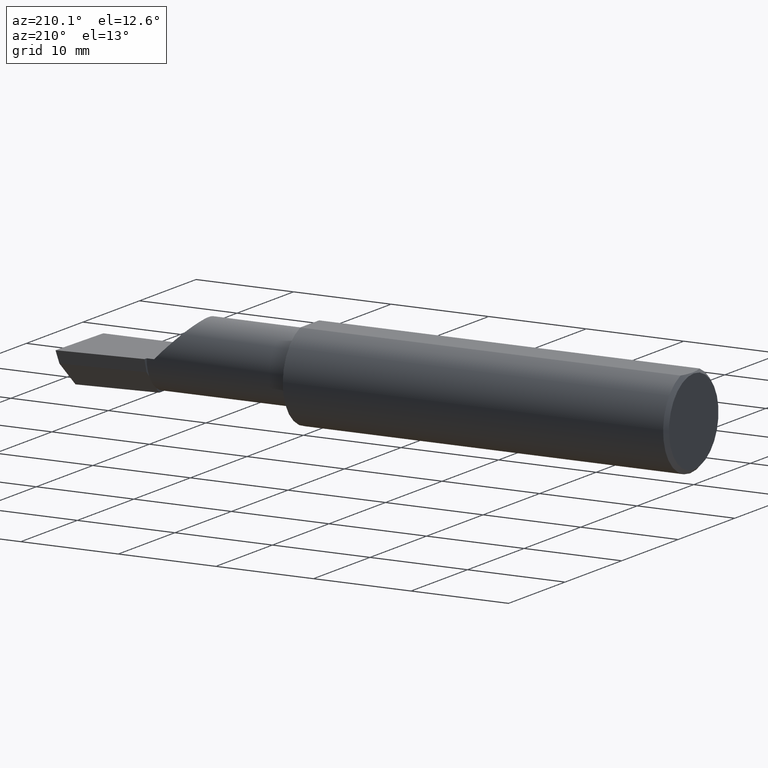
[diagram: clean part render]
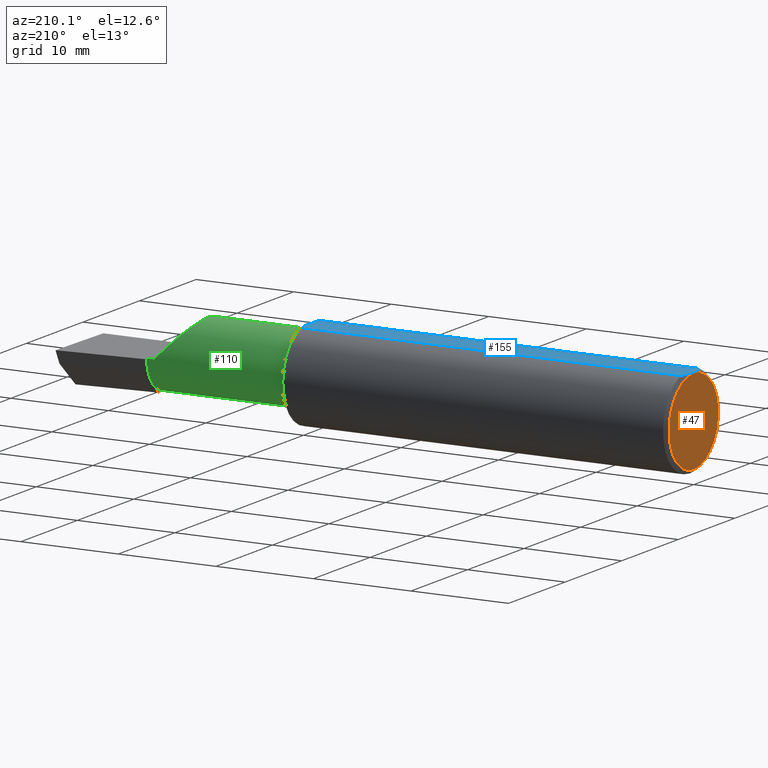
[diagram: same view with three faces highlighted in distinct colors, each labeled with its STEP entity id]
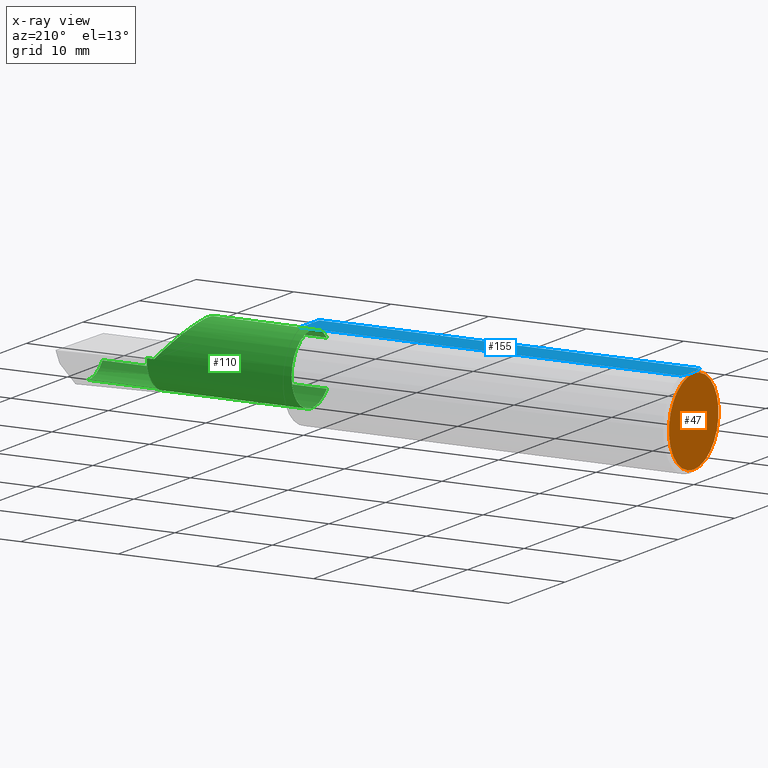
[diagram: x-ray of the same camera — body ghosted, the three highlighted faces saturated]
A machine part, auxiliary view with three faces highlighted in distinct colors.
The next image is the same camera in x-ray (body ghosted, the three faces saturated) — at least one of them is partly hidden behind the body in this view.
Their STEP definitions:

[orange] entity #47 — the highlighted planar face has unit normal (1, 0, 0).
#47 = ADVANCED_FACE ( 'NONE', ( #172 ), #56, .F. ) ;
#53 = EDGE_CURVE ( 'NONE', #376, #537, #286, .T. ) ;
#56 = PLANE ( 'NONE',  #517 ) ;
#113 = CIRCLE ( 'NONE', #435, 0.1723499999999996424 ) ;
#125 = DIRECTION ( 'NONE',  ( 1.000000000000000000, 0.0000000000000000000, 0.0000000000000000000 ) ) ;
#128 = CARTESIAN_POINT ( 'NONE',  ( 0.0000000000000000000, 0.0000000000000000000, 0.0000000000000000000 ) ) ;
#172 = FACE_OUTER_BOUND ( 'NONE', #519, .T. ) ;
#227 = ORIENTED_EDGE ( 'NONE', *, *, #53, .T. ) ;
#235 = ORIENTED_EDGE ( 'NONE', *, *, #321, .T. ) ;
#241 = CARTESIAN_POINT ( 'NONE',  ( 0.0000000000000000000, 0.0000000000000000000, 0.0000000000000000000 ) ) ;
#243 = DIRECTION ( 'NONE',  ( -1.000000000000000000, -0.0000000000000000000, -0.0000000000000000000 ) ) ;
#245 = DIRECTION ( 'NONE',  ( 0.0000000000000000000, 0.0000000000000000000, 1.000000000000000000 ) ) ;
#286 = CIRCLE ( 'NONE', #498, 0.1723499999999996424 ) ;
#321 = EDGE_CURVE ( 'NONE', #537, #376, #113, .T. ) ;
#376 = VERTEX_POINT ( 'NONE', #449 ) ;
#380 = DIRECTION ( 'NONE',  ( 0.0000000000000000000, 0.0000000000000000000, -1.000000000000000000 ) ) ;
#412 = DIRECTION ( 'NONE',  ( 0.0000000000000000000, 0.0000000000000000000, 1.000000000000000000 ) ) ;
#435 = AXIS2_PLACEMENT_3D ( 'NONE', #241, #243, #245 ) ;
#449 = CARTESIAN_POINT ( 'NONE',  ( 0.0000000000000000000, 2.202527268266512578E-17, 0.1723499999999996424 ) ) ;
#466 = CARTESIAN_POINT ( 'NONE',  ( 0.0000000000000000000, 0.0000000000000000000, 0.0000000000000000000 ) ) ;
#498 = AXIS2_PLACEMENT_3D ( 'NONE', #466, #546, #412 ) ;
#517 = AXIS2_PLACEMENT_3D ( 'NONE', #128, #125, #380 ) ;
#519 = EDGE_LOOP ( 'NONE', ( #235, #227 ) ) ;
#537 = VERTEX_POINT ( 'NONE', #583 ) ;
#546 = DIRECTION ( 'NONE',  ( -1.000000000000000000, -0.0000000000000000000, -0.0000000000000000000 ) ) ;
#583 = CARTESIAN_POINT ( 'NONE',  ( 0.0000000000000000000, 0.0000000000000000000, -0.1723499999999996424 ) ) ;

[blue] entity #155 — the highlighted planar face has unit normal (0, -0, -1).
#9 = VERTEX_POINT ( 'NONE', #31 ) ;
#31 = CARTESIAN_POINT ( 'NONE',  ( 1.550000000000000044, -0.06597272163553659363, 0.1753499999999999781 ) ) ;
#32 = EDGE_LOOP ( 'NONE', ( #101, #382, #136, #478, #587 ) ) ;
#42 = B_SPLINE_CURVE_WITH_KNOTS ( 'NONE', 3,
 ( #322, #304, #440, #442, #453, #462 ),
 .UNSPECIFIED., .F., .F.,
 ( 4, 2, 4 ),
 ( 0.003480013901590607410, 0.004330767971208083697, 0.005181522040825559984 ),
 .UNSPECIFIED. ) ;
#43 = DIRECTION ( 'NONE',  ( 0.0000000000000000000, -1.438723400918613551E-16, -1.000000000000000000 ) ) ;
#74 = VECTOR ( 'NONE', #288, 39.37007874015748143 ) ;
#76 = AXIS2_PLACEMENT_3D ( 'NONE', #450, #43, #104 ) ;
#101 = ORIENTED_EDGE ( 'NONE', *, *, #357, .F. ) ;
#104 = DIRECTION ( 'NONE',  ( 0.0000000000000000000, 1.000000000000000000, -1.438723400918613551E-16 ) ) ;
#111 = B_SPLINE_CURVE_WITH_KNOTS ( 'NONE', 3,
 ( #335, #292, #267, #340, #349, #388 ),
 .UNSPECIFIED., .F., .F.,
 ( 4, 2, 4 ),
 ( 0.001779942938356815062, 0.002629978419973711019, 0.003480013901590607410 ),
 .UNSPECIFIED. ) ;
#127 = CARTESIAN_POINT ( 'NONE',  ( 1.550000000000000044, 0.2373500000000000332, 0.1753499999999999504 ) ) ;
#136 = ORIENTED_EDGE ( 'NONE', *, *, #374, .F. ) ;
#144 = LINE ( 'NONE', #127, #446 ) ;
#155 = ADVANCED_FACE ( 'NONE', ( #405 ), #593, .F. ) ;
#184 = LINE ( 'NONE', #213, #74 ) ;
#213 = CARTESIAN_POINT ( 'NONE',  ( 0.0000000000000000000, -0.06597272163553657975, 0.1753499999999999781 ) ) ;
#261 = VERTEX_POINT ( 'NONE', #527 ) ;
#267 = CARTESIAN_POINT ( 'NONE',  ( 0.008227791779583789808, -0.04447712204611815878, 0.1753499999999999781 ) ) ;
#273 = DIRECTION ( 'NONE',  ( 1.000000000000000000, 0.0000000000000000000, 0.0000000000000000000 ) ) ;
#281 = CARTESIAN_POINT ( 'NONE',  ( 0.0000000000000000000, 0.06597272163553663527, 0.1753499999999999781 ) ) ;
#288 = DIRECTION ( 'NONE',  ( -1.000000000000000000, -0.0000000000000000000, -0.0000000000000000000 ) ) ;
#291 = CARTESIAN_POINT ( 'NONE',  ( 0.003000000000000218638, 2.334609556160449697E-17, 0.1753499999999999781 ) ) ;
#292 = CARTESIAN_POINT ( 'NONE',  ( 0.01128414053810044941, -0.05542038647445821781, 0.1753499999999999781 ) ) ;
#294 = VECTOR ( 'NONE', #273, 39.37007874015748143 ) ;
#304 = CARTESIAN_POINT ( 'NONE',  ( 0.003000000000000169632, 0.01127363201155560934, 0.1753499999999999781 ) ) ;
#312 = DIRECTION ( 'NONE',  ( 6.829619984160658046E-18, -1.000000000000000000, 1.438723400918613551E-16 ) ) ;
#322 = CARTESIAN_POINT ( 'NONE',  ( 0.003000000000000218638, 2.334609556160449697E-17, 0.1753499999999999781 ) ) ;
#335 = CARTESIAN_POINT ( 'NONE',  ( 0.01499999999999997863, -0.06597272163553657975, 0.1753499999999999781 ) ) ;
#337 = EDGE_CURVE ( 'NONE', #9, #432, #184, .T. ) ;
#340 = CARTESIAN_POINT ( 'NONE',  ( 0.004093196532652216939, -0.02240707710020816909, 0.1753499999999999504 ) ) ;
#349 = CARTESIAN_POINT ( 'NONE',  ( 0.003000000000000172667, -0.01126410975715121283, 0.1753500000000000059 ) ) ;
#351 = EDGE_CURVE ( 'NONE', #444, #261, #566, .T. ) ;
#353 = EDGE_CURVE ( 'NONE', #432, #574, #111, .T. ) ;
#357 = EDGE_CURVE ( 'NONE', #261, #9, #144, .T. ) ;
#374 = EDGE_CURVE ( 'NONE', #574, #444, #42, .T. ) ;
#382 = ORIENTED_EDGE ( 'NONE', *, *, #351, .F. ) ;
#388 = CARTESIAN_POINT ( 'NONE',  ( 0.003000000000000218638, 2.334609556160449697E-17, 0.1753499999999999781 ) ) ;
#405 = FACE_OUTER_BOUND ( 'NONE', #32, .T. ) ;
#432 = VERTEX_POINT ( 'NONE', #518 ) ;
#440 = CARTESIAN_POINT ( 'NONE',  ( 0.004115035183746292881, 0.02255629470626744487, 0.1753499999999999781 ) ) ;
#442 = CARTESIAN_POINT ( 'NONE',  ( 0.008244775919947424855, 0.04453482769755855164, 0.1753499999999999504 ) ) ;
#444 = VERTEX_POINT ( 'NONE', #545 ) ;
#446 = VECTOR ( 'NONE', #312, 39.37007874015748143 ) ;
#450 = CARTESIAN_POINT ( 'NONE',  ( 2.500000000000000000, 0.2373500000000000332, 0.1753499999999999504 ) ) ;
#453 = CARTESIAN_POINT ( 'NONE',  ( 0.01125230581755086272, 0.05532998191409922023, 0.1753500000000000059 ) ) ;
#462 = CARTESIAN_POINT ( 'NONE',  ( 0.01499999999999999424, 0.06597272163553663527, 0.1753499999999999781 ) ) ;
#478 = ORIENTED_EDGE ( 'NONE', *, *, #353, .F. ) ;
#518 = CARTESIAN_POINT ( 'NONE',  ( 0.01499999999999997863, -0.06597272163553657975, 0.1753499999999999781 ) ) ;
#527 = CARTESIAN_POINT ( 'NONE',  ( 1.550000000000000044, 0.06597272163553663527, 0.1753499999999999781 ) ) ;
#545 = CARTESIAN_POINT ( 'NONE',  ( 0.01499999999999999424, 0.06597272163553663527, 0.1753499999999999781 ) ) ;
#566 = LINE ( 'NONE', #281, #294 ) ;
#574 = VERTEX_POINT ( 'NONE', #291 ) ;
#587 = ORIENTED_EDGE ( 'NONE', *, *, #337, .F. ) ;
#593 = PLANE ( 'NONE',  #76 ) ;

[green] entity #110 — the highlighted cylindrical surface (partial cylindrical patch) has radius 3.5573 mm, axis along (-1, -0, -0).
#4 = CARTESIAN_POINT ( 'NONE',  ( 2.160000000000000142, -0.05739999999999999963, 0.0000000000000000000 ) ) ;
#19 = VECTOR ( 'NONE', #274, 39.37007874015748143 ) ;
#21 = DIRECTION ( 'NONE',  ( 0.0000000000000000000, -1.000000000000000000, 1.776356839400250465E-15 ) ) ;
#39 = LINE ( 'NONE', #94, #19 ) ;
#55 = ORIENTED_EDGE ( 'NONE', *, *, #427, .T. ) ;
#58 = CIRCLE ( 'NONE', #528, 0.1400499999999999801 ) ;
#79 = ORIENTED_EDGE ( 'NONE', *, *, #310, .T. ) ;
#83 = CARTESIAN_POINT ( 'NONE',  ( 2.129999999999999893, 0.08264999999999983471, 1.065442715258197396E-16 ) ) ;
#86 = VERTEX_POINT ( 'NONE', #502 ) ;
#87 = EDGE_CURVE ( 'NONE', #401, #328, #389, .T. ) ;
#93 = CARTESIAN_POINT ( 'NONE',  ( 2.160000000000000142, 0.06495571228477940717, -0.06814016562413301170 ) ) ;
#94 = CARTESIAN_POINT ( 'NONE',  ( 1.867500000000000160, -0.1635956445993030639, -0.09130436773856169530 ) ) ;
#98 = DIRECTION ( 'NONE',  ( 1.000000000000000000, 6.829619984160658046E-18, 0.0000000000000000000 ) ) ;
#105 = CARTESIAN_POINT ( 'NONE',  ( 1.574999999999999956, -0.05740000000000000657, 0.0000000000000000000 ) ) ;
#110 = ADVANCED_FACE ( 'NONE', ( #334 ), #126, .T. ) ;
#112 = DIRECTION ( 'NONE',  ( 1.000000000000000000, 6.829619984160658046E-18, 0.0000000000000000000 ) ) ;
#114 = DIRECTION ( 'NONE',  ( -1.000000000000000000, -6.829619984160658046E-18, -0.0000000000000000000 ) ) ;
#116 = ORIENTED_EDGE ( 'NONE', *, *, #87, .T. ) ;
#121 = DIRECTION ( 'NONE',  ( 0.0000000000000000000, -1.000000000000000000, 0.0000000000000000000 ) ) ;
#124 = ORIENTED_EDGE ( 'NONE', *, *, #529, .F. ) ;
#126 = CYLINDRICAL_SURFACE ( 'NONE', #346, 0.1400499999999999801 ) ;
#152 = EDGE_CURVE ( 'NONE', #180, #251, #534, .T. ) ;
#157 = AXIS2_PLACEMENT_3D ( 'NONE', #232, #181, #339 ) ;
#158 = VERTEX_POINT ( 'NONE', #214 ) ;
#162 = CARTESIAN_POINT ( 'NONE',  ( 1.574999999999999956, -0.1635956445993027031, 0.09130436773856204224 ) ) ;
#175 = CARTESIAN_POINT ( 'NONE',  ( 2.038695632261437130, -0.1635956445993029529, 0.09130436773856188959 ) ) ;
#180 = VERTEX_POINT ( 'NONE', #162 ) ;
#181 = DIRECTION ( 'NONE',  ( -1.000000000000000000, -6.829619984160658046E-18, -0.0000000000000000000 ) ) ;
#182 = VERTEX_POINT ( 'NONE', #343 ) ;
#183 = CARTESIAN_POINT ( 'NONE',  ( 1.921229036482944075, -0.06260079402492431389, 0.2087709635170537925 ) ) ;
#185 = CARTESIAN_POINT ( 'NONE',  ( 1.975085956200449022, 0.08264999999999997349, 0.1549140437995493169 ) ) ;
#187 = EDGE_CURVE ( 'NONE', #86, #158, #39, .T. ) ;
#189 = CARTESIAN_POINT ( 'NONE',  ( 2.129999999999999893, 0.08264999999999983471, 1.065442715258197396E-16 ) ) ;
#198 = ORIENTED_EDGE ( 'NONE', *, *, #394, .F. ) ;
#206 = LINE ( 'NONE', #331, #399 ) ;
#214 = CARTESIAN_POINT ( 'NONE',  ( 1.574999999999999956, -0.1635956445993029529, -0.09130436773856180632 ) ) ;
#217 = DIRECTION ( 'NONE',  ( 1.000000000000000000, 6.829619984160658046E-18, 0.0000000000000000000 ) ) ;
#220 = CARTESIAN_POINT ( 'NONE',  ( 2.160000000000000142, -0.05739999999999999963, -0.1400500000000000633 ) ) ;
#223 = VECTOR ( 'NONE', #479, 39.37007874015748143 ) ;
#231 = CARTESIAN_POINT ( 'NONE',  ( 2.481080296960508580, -0.1635956445993030639, -0.09130436773856169530 ) ) ;
#232 = CARTESIAN_POINT ( 'NONE',  ( 2.160000000000000142, -0.05739999999999999963, 0.0000000000000000000 ) ) ;
#233 = CARTESIAN_POINT ( 'NONE',  ( 2.477925907309857401, -0.1365595166907236646, -0.1227499502647107360 ) ) ;
#239 = DIRECTION ( 'NONE',  ( -1.000000000000000000, -6.829619984160658046E-18, -0.0000000000000000000 ) ) ;
#248 = CARTESIAN_POINT ( 'NONE',  ( 2.476787929832031221, -0.09887019258091189755, -0.1400500000000000078 ) ) ;
#249 = AXIS2_PLACEMENT_3D ( 'NONE', #105, #114, #121 ) ;
#251 = VERTEX_POINT ( 'NONE', #252 ) ;
#252 = CARTESIAN_POINT ( 'NONE',  ( 2.038695632261437130, -0.1635956445993029529, 0.09130436773856188959 ) ) ;
#274 = DIRECTION ( 'NONE',  ( -1.000000000000000000, -6.829619984160658046E-18, -0.0000000000000000000 ) ) ;
#276 = LINE ( 'NONE', #393, #223 ) ;
#289 = VERTEX_POINT ( 'NONE', #83 ) ;
#309 = VERTEX_POINT ( 'NONE', #93 ) ;
#310 = EDGE_CURVE ( 'NONE', #251, #289, #551, .T. ) ;
#316 = ORIENTED_EDGE ( 'NONE', *, *, #456, .T. ) ;
#326 = EDGE_CURVE ( 'NONE', #86, #182, #347, .T. ) ;
#328 = VERTEX_POINT ( 'NONE', #220 ) ;
#331 = CARTESIAN_POINT ( 'NONE',  ( -9.564882787816662316E-19, 0.08264999999999995961, 3.267291166268304703E-16 ) ) ;
#334 = FACE_OUTER_BOUND ( 'NONE', #597, .T. ) ;
#339 = DIRECTION ( 'NONE',  ( 0.0000000000000000000, -1.000000000000000000, 0.0000000000000000000 ) ) ;
#343 = CARTESIAN_POINT ( 'NONE',  ( 2.477873865042410806, -0.05739999999999999963, -0.1400500000000000633 ) ) ;
#346 = AXIS2_PLACEMENT_3D ( 'NONE', #581, #239, #561 ) ;
#347 =( BOUNDED_CURVE ( )  B_SPLINE_CURVE ( 3, ( #231, #233, #248, #408 ),
 .UNSPECIFIED., .F., .T. ) 
 B_SPLINE_CURVE_WITH_KNOTS ( ( 4, 4 ),
 ( 5.632580117768154260, 6.493234751459282528 ),
 .UNSPECIFIED. ) 
 CURVE ( )  GEOMETRIC_REPRESENTATION_ITEM ( )  RATIONAL_B_SPLINE_CURVE ( ( 1.000000000000000000, 0.9392195014330942948, 0.9392195014330942948, 1.000000000000000000 ) ) 
 REPRESENTATION_ITEM ( '' )  );
#348 = AXIS2_PLACEMENT_3D ( 'NONE', #535, #536, #539 ) ;
#360 = CARTESIAN_POINT ( 'NONE',  ( 1.867500000000000160, -0.1635956445993030639, 0.09130436773856169530 ) ) ;
#363 = CIRCLE ( 'NONE', #348, 0.1400500000000000356 ) ;
#366 = VERTEX_POINT ( 'NONE', #419 ) ;
#389 = CIRCLE ( 'NONE', #157, 0.1400500000000000356 ) ;
#393 = CARTESIAN_POINT ( 'NONE',  ( 2.500000000000000000, -0.05739999999999999963, -0.1400500000000000633 ) ) ;
#394 = EDGE_CURVE ( 'NONE', #182, #328, #276, .T. ) ;
#399 = VECTOR ( 'NONE', #112, 39.37007874015748143 ) ;
#401 = VERTEX_POINT ( 'NONE', #503 ) ;
#408 = CARTESIAN_POINT ( 'NONE',  ( 2.477873865042410806, -0.05739999999999999963, -0.1400500000000000633 ) ) ;
#419 = CARTESIAN_POINT ( 'NONE',  ( 2.160000000000000142, 0.08265000000000004288, 3.267291166268306182E-16 ) ) ;
#427 = EDGE_CURVE ( 'NONE', #366, #309, #363, .T. ) ;
#429 = ORIENTED_EDGE ( 'NONE', *, *, #326, .F. ) ;
#456 = EDGE_CURVE ( 'NONE', #289, #366, #206, .T. ) ;
#461 = ORIENTED_EDGE ( 'NONE', *, *, #187, .T. ) ;
#479 = DIRECTION ( 'NONE',  ( -1.000000000000000000, 5.691349986800549142E-18, -0.0000000000000000000 ) ) ;
#483 = ORIENTED_EDGE ( 'NONE', *, *, #152, .T. ) ;
#501 = EDGE_CURVE ( 'NONE', #401, #309, #58, .T. ) ;
#502 = CARTESIAN_POINT ( 'NONE',  ( 2.481080296960508580, -0.1635956445993030639, -0.09130436773856169530 ) ) ;
#503 = CARTESIAN_POINT ( 'NONE',  ( 2.160000000000000142, 0.01441505128072313735, -0.1202356058309979187 ) ) ;
#512 = ORIENTED_EDGE ( 'NONE', *, *, #501, .F. ) ;
#523 = VECTOR ( 'NONE', #98, 39.37007874015748143 ) ;
#528 = AXIS2_PLACEMENT_3D ( 'NONE', #4, #217, #21 ) ;
#529 = EDGE_CURVE ( 'NONE', #180, #158, #555, .T. ) ;
#534 = LINE ( 'NONE', #360, #523 ) ;
#535 = CARTESIAN_POINT ( 'NONE',  ( 2.160000000000000142, -0.05739999999999999963, 0.0000000000000000000 ) ) ;
#536 = DIRECTION ( 'NONE',  ( -1.000000000000000000, -6.829619984160658046E-18, -0.0000000000000000000 ) ) ;
#539 = DIRECTION ( 'NONE',  ( 0.0000000000000000000, -1.000000000000000000, 0.0000000000000000000 ) ) ;
#551 =( BOUNDED_CURVE ( )  B_SPLINE_CURVE ( 3, ( #175, #183, #185, #189 ),
 .UNSPECIFIED., .F., .T. ) 
 B_SPLINE_CURVE_WITH_KNOTS ( ( 4, 4 ),
 ( 5.422530673488458852, 7.853981633974482790 ),
 .UNSPECIFIED. ) 
 CURVE ( )  GEOMETRIC_REPRESENTATION_ITEM ( )  RATIONAL_B_SPLINE_CURVE ( ( 1.000000000000000000, 0.5651045289226863666, 0.5651045289226863666, 1.000000000000000000 ) ) 
 REPRESENTATION_ITEM ( '' )  );
#555 = CIRCLE ( 'NONE', #249, 0.1400499999999999523 ) ;
#561 = DIRECTION ( 'NONE',  ( 6.829619984160658816E-18, -1.000000000000000000, 0.0000000000000000000 ) ) ;
#581 = CARTESIAN_POINT ( 'NONE',  ( 0.0000000000000000000, -0.05740000000000001351, 0.0000000000000000000 ) ) ;
#597 = EDGE_LOOP ( 'NONE', ( #429, #461, #124, #483, #79, #316, #55, #512, #116, #198 ) ) ;